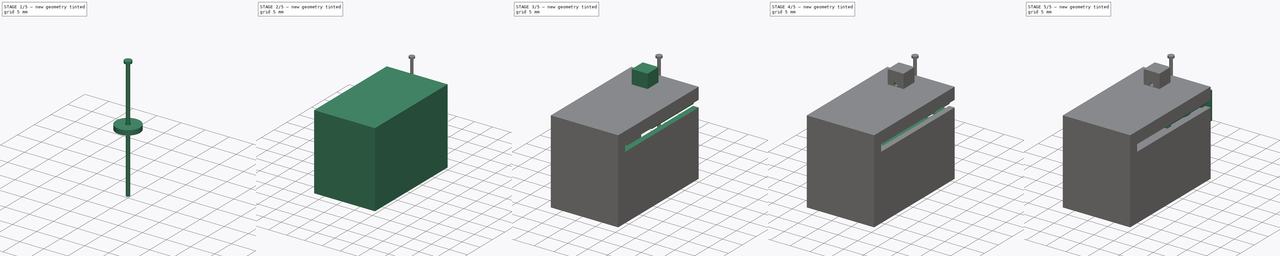
[diagram: build sequence overview — one tinted view per stage of 5, left to right]
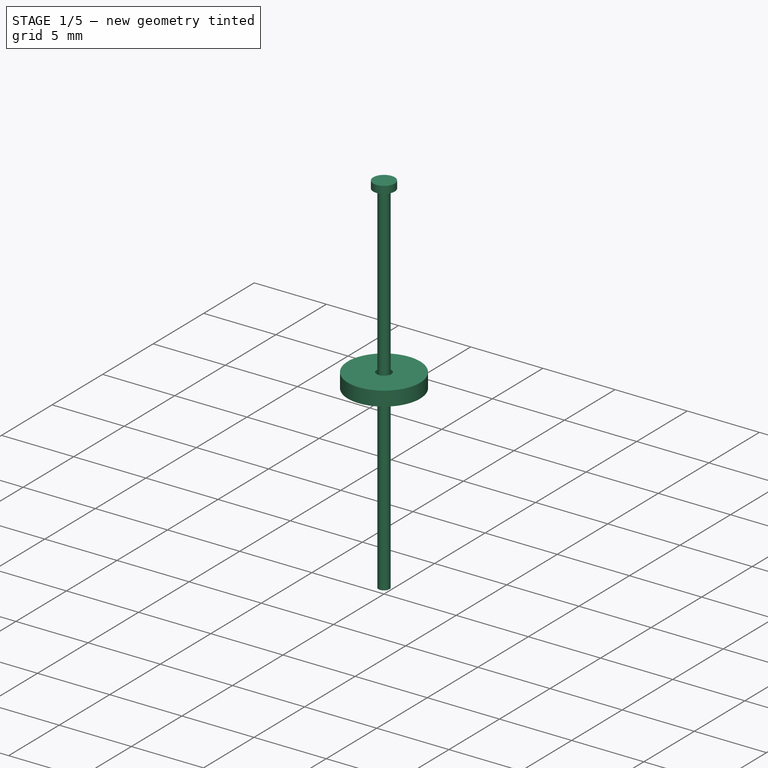
[diagram: stage 1 of 5 — iso view after this stage's code; geometry added in this stage tinted green]
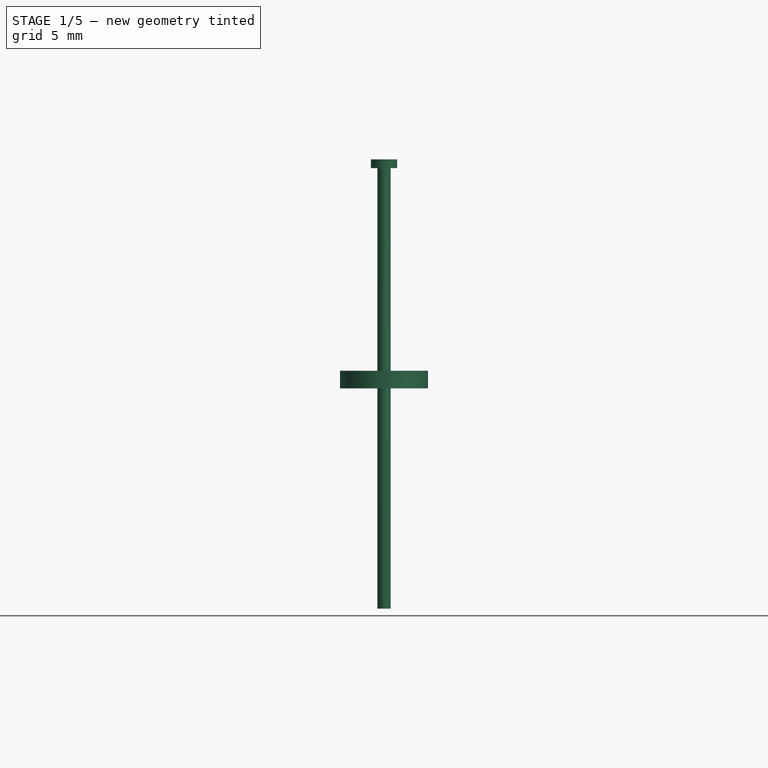
[diagram: stage 1 of 5 — front view after this stage's code; geometry added in this stage tinted green]
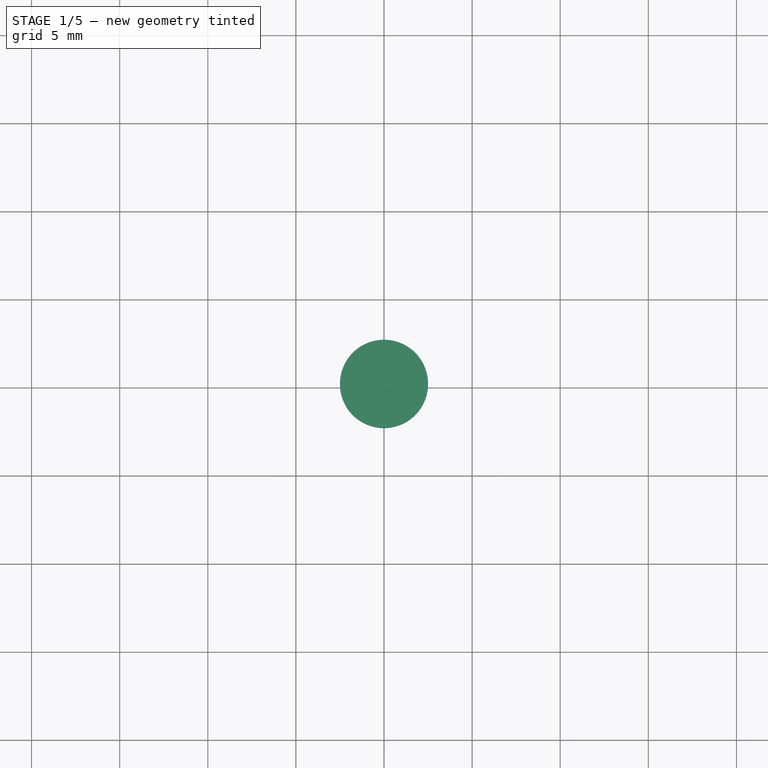
[diagram: stage 1 of 5 — top view after this stage's code; geometry added in this stage tinted green]
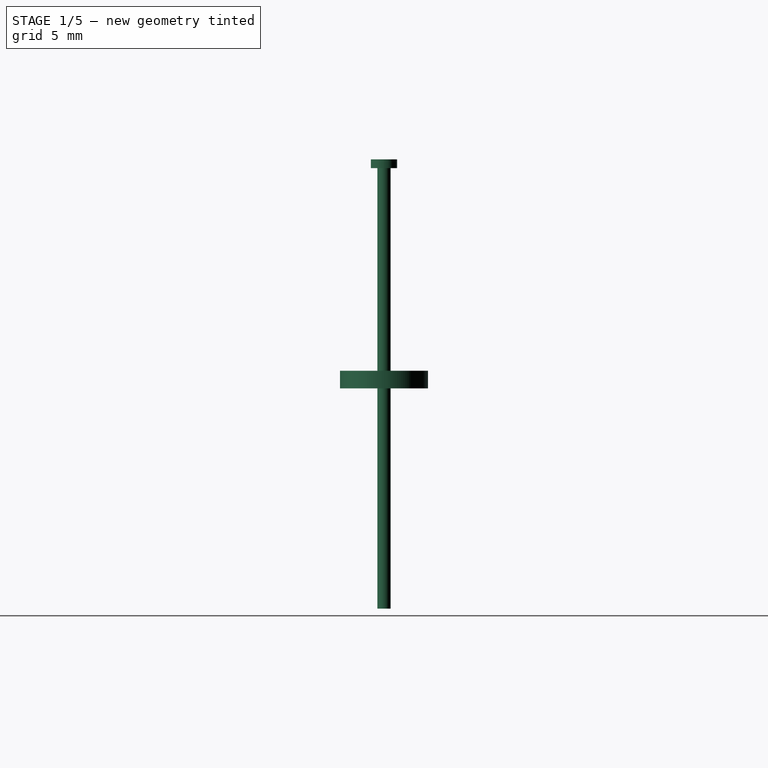
[diagram: stage 1 of 5 — right view after this stage's code; geometry added in this stage tinted green]
FCSTD DOCUMENT  (FreeCAD 0.19R24276 (Git))
Label: Actuator_Model_A_rev(02)
License: All rights reserved
LicenseURL: http://en.wikipedia.org/wiki/All_rights_reserved
objects: Sketcher::SketchObject×17, PartDesign::Pad×12, PartDesign::Body×7, PartDesign::Pocket×4, App::Part×3, Image::ImagePlane×1
note: 56 computed .brp shape members not serialized (recipe doc carries the construction recipe); baked Part::Feature solids carry a one-line shape summary decoded from their .brp

FEATURE [PartDesign::Body] Body003  label="Segment"
  Group = -> [Sketch005,Pad005,Sketch006,Pad006,Sketch007,Pocket]
  Origin = -> Origin007
  Placement = pos=(0,9,-2) rot=(1,0,0;1.5708rad)
  Tip = -> Pocket
FEATURE [Sketcher::SketchObject] Sketch008
  FullyConstrained = true
  MapMode = 5
  Support = -> [XY_Plane008]
  sketch-geometry (1):
    g0: Circle CenterX=0 CenterY=0 CenterZ=0 NormalX=0 NormalY=0 NormalZ=1 AngleXU=0 Radius=0.375
  constraints (2):
    c: Coincident(g0,g-1)
    c: Radius(g0) = 0.375
FEATURE [PartDesign::Pad] Pad007
  Direction = (1,1,1)
  Length = 25
  Length2 = 100
  Midplane = true
  Profile = -> Sketch008
  Type = 0
FEATURE [Sketcher::SketchObject] Sketch015
  FullyConstrained = true
  MapMode = 5
  Support = -> [XY_Plane013]
  sketch-geometry (2):
    g0: Circle CenterX=0 CenterY=0 CenterZ=0 NormalX=0 NormalY=0 NormalZ=1 AngleXU=0 Radius=2.5
    g1: Circle CenterX=0 CenterY=0 CenterZ=0 NormalX=0 NormalY=0 NormalZ=1 AngleXU=0 Radius=0.5
  constraints (4):
    c: Coincident(g0,g-1)
    c: Radius(g0) = 2.5
    c: Coincident(g1,g0)
    c: Radius(g1) = 0.5
FEATURE [PartDesign::Pad] Pad010
  Direction = (1,1,1)
  Length = 1
  Length2 = 100
  Profile = -> Sketch015
  Type = 0
FEATURE [PartDesign::Body] Body007  label="Pin Guide"
  Group = -> [Sketch015,Pad010,Sketch017,Pad011]
  Origin = -> Origin013
  Placement = pos=(0,0,-3) rot=(0,0,1;0rad)
  Tip = -> Pad011
FEATURE [Sketcher::SketchObject] Sketch018
  FullyConstrained = false
  MapMode = 5
  Placement = pos=(0,0,12.5) rot=(0,0,1;0rad)
  Support = -> [Pad007]
  sketch-geometry (1):
    g0: Circle CenterX=0 CenterY=0 CenterZ=0 NormalX=0 NormalY=0 NormalZ=1 AngleXU=0 Radius=0.742682
  constraints (1):
    c: Coincident(g0,g-1)
FEATURE [PartDesign::Pad] Pad012
  BaseFeature = -> Pad007
  Direction = (1,1,1)
  Length = 0.5
  Length2 = 100
  Profile = -> Sketch018
  Type = 0
FEATURE [PartDesign::Body] Body004  label="Pin"
  Group = -> [Sketch008,Pad007,Sketch018,Pad012]
  Origin = -> Origin008
  Placement = pos=(0,0,-2) rot=(0,0,1;0rad)
  Tip = -> Pad012
FEATURE [App::Part] Part001  label="Segment Assy"
  Group = -> [Body003,Body004,Body007]
  Origin = -> Origin006
FEATURE [Sketcher::SketchObject] Sketch011  label="Actuator_DXF"
  FullyConstrained = false
  sketch-geometry (36):
    g0: ArcOfCircle CenterX=-1.255 CenterY=9.45 CenterZ=0 NormalX=0 NormalY=0 NormalZ=1 AngleXU=0 Radius=3.25 StartAngle=3.80447 EndAngle=4.17988
    g1: ArcOfCircle CenterX=-1.255 CenterY=9.45 CenterZ=0 NormalX=0 NormalY=0 NormalZ=1 AngleXU=0 Radius=3 StartAngle=2.15316 EndAngle=2.41186
    g2: LineSegment StartX=-2.905 StartY=14.05 StartZ=0 EndX=-2.905 EndY=11.9555 EndZ=0
    g3: LineSegment StartX=-3.49107 StartY=11.45 StartZ=0 EndX=-5.06157 EndY=11.45 EndZ=0
    g4: LineSegment StartX=0.395 StartY=14.05 StartZ=0 EndX=0.395 EndY=12.25 EndZ=0
    g5: ArcOfCircle CenterX=-1.255 CenterY=9.45 CenterZ=0 NormalX=0 NormalY=0 NormalZ=1 AngleXU=0 Radius=4.3 StartAngle=2.65783 EndAngle=3.62536
    g6: LineSegment StartX=-5.06157 StartY=7.45 StartZ=0 EndX=-3.81674 EndY=7.45 EndZ=0
    g7: LineSegment StartX=-2.905 StartY=1.32754 StartZ=0 EndX=-3.405 EndY=0.716888 EndZ=0
    g8: LineSegment StartX=-3.405 StartY=0.716888 StartZ=0 EndX=-3.405 EndY=-11.161 EndZ=0
    g9: LineSegment StartX=-3.405 StartY=-11.161 StartZ=0 EndX=0.895 EndY=-11.161 EndZ=0
    g10: LineSegment StartX=0.895 StartY=-11.161 StartZ=0 EndX=0.895 EndY=0.716888 EndZ=0
    g11: LineSegment StartX=0.895 StartY=0.716888 StartZ=0 EndX=0.395 EndY=1.32754 EndZ=0
    g12: LineSegment StartX=0.395 StartY=1.32754 StartZ=0 EndX=0.395 EndY=6.94451 EndZ=0
    g13: LineSegment StartX=0.981068 StartY=7.45 StartZ=0 EndX=2.55157 EndY=7.45 EndZ=0
    g14: LineSegment StartX=0.395 StartY=14.05 StartZ=0 EndX=4.295 EndY=14.05 EndZ=0
    g15: LineSegment StartX=4.295 StartY=14.05 StartZ=0 EndX=4.295 EndY=-13.8452 EndZ=0
    g16: LineSegment StartX=4.295 StartY=-13.8452 StartZ=0 EndX=-6.805 EndY=-13.8452 EndZ=0
    g17: LineSegment StartX=-6.805 StartY=-13.8452 StartZ=0 EndX=-6.805 EndY=14.05 EndZ=0
    g18: LineSegment StartX=-6.805 StartY=14.05 StartZ=0 EndX=-2.905 EndY=14.05 EndZ=0
    g19: ArcOfCircle CenterX=-1.255 CenterY=9.45 CenterZ=0 NormalX=0 NormalY=0 NormalZ=1 AngleXU=0 Radius=3.25 StartAngle=0.662874 EndAngle=1.03829
    g20: ArcOfCircle CenterX=-1.255 CenterY=9.45 CenterZ=0 NormalX=0 NormalY=0 NormalZ=1 AngleXU=0 Radius=3 StartAngle=5.29475 EndAngle=5.55346
    g21: LineSegment StartX=1.30674 StartY=11.45 StartZ=0 EndX=2.55157 EndY=11.45 EndZ=0
    g22: ArcOfCircle CenterX=-1.255 CenterY=9.45 CenterZ=0 NormalX=0 NormalY=0 NormalZ=1 AngleXU=0 Radius=4.3 StartAngle=5.79942 EndAngle=6.76695
    g23: LineSegment StartX=-2.905 StartY=6.65 StartZ=0 EndX=-2.905 EndY=1.32754 EndZ=0
    g24: Circle CenterX=-1.255 CenterY=9.45 CenterZ=0 NormalX=0 NormalY=0 NormalZ=1 AngleXU=0 Radius=1.1
    g25: Circle CenterX=-1.255 CenterY=9.45 CenterZ=0 NormalX=0 NormalY=0 NormalZ=1 AngleXU=0 Radius=2.6
    g26: LineSegment StartX=4.75434 StartY=4.3 StartZ=0 EndX=6.75434 EndY=4.3 EndZ=0
    g27: LineSegment StartX=6.75434 StartY=4.3 StartZ=0 EndX=6.75434 EndY=-10 EndZ=0
    g28: LineSegment StartX=6.75434 StartY=-10 StartZ=0 EndX=4.75434 EndY=-10 EndZ=0
    g29: LineSegment StartX=4.75434 StartY=-10 StartZ=0 EndX=4.75434 EndY=4.3 EndZ=0
    g30: LineSegment StartX=0 StartY=4.3 StartZ=0 EndX=-2 EndY=4.3 EndZ=0
    g31: LineSegment StartX=-2 StartY=4.3 StartZ=0 EndX=-2 EndY=-10 EndZ=0
    g32: LineSegment StartX=-2 StartY=-10 StartZ=0 EndX=0 EndY=-10 EndZ=0
    g33: LineSegment StartX=0 StartY=-10 StartZ=0 EndX=0 EndY=4.3 EndZ=0
    g34: LineSegment StartX=-1.255 StartY=9.45 StartZ=0 EndX=-5.03131 EndY=9.45 EndZ=0
    g35: LineSegment StartX=-1.255 StartY=9.45 StartZ=0 EndX=-1.255 EndY=5.79474 EndZ=0
  constraints (78):
    c: DistanceX(g0) = -1.255
    c: DistanceY(g0) = 9.45
    c: Radius(g0) = 3.25
    c: Coincident(g1,g0)
    c: Radius(g1) = 3
    c: Vertical(g2)
    c: Horizontal(g3)
    c: Vertical(g4)
    c: Coincident(g5,g0)
    c: Radius(g5) = 4.3
    c: Horizontal(g6)
    c: Coincident(g23,g7)
    c: Coincident(g7,g8)
    c: Vertical(g8)
    c: Coincident(g8,g9)
    c: Horizontal(g9)
    c: Coincident(g9,g10)
    c: Vertical(g10)
    c: Coincident(g10,g11)
    c: Coincident(g11,g12)
    c: Vertical(g12)
    c: Horizontal(g13)
    c: Coincident(g4,g14)
    c: Horizontal(g14)
    c: Coincident(g14,g15)
    c: Vertical(g15)
    c: Coincident(g15,g16)
    c: Horizontal(g16)
    c: Coincident(g16,g17)
    c: Vertical(g17)
    c: Coincident(g17,g18)
    c: Coincident(g18,g2)
    c: Horizontal(g18)
    c: Equal(g14,g18)
    c: DistanceX(g14,g14) = 3.9
    c: DistanceX(g9,g9) = 4.3
    c: Coincident(g3,g5)
    c: Equal(g0,g19)
    c: Coincident(g0,g19)
    c: Coincident(g21,g19)
    c: Coincident(g4,g19)
    c: Coincident(g2,g1)
    c: Coincident(g3,g1)
    c: Coincident(g6,g0)
    c: Coincident(g5,g6)
    c: Coincident(g13,g20)
    c: Coincident(g12,g20)
    c: Coincident(g23,g0)
    c: Coincident(g13,g22)
    c: Coincident(g22,g21)
    c: Coincident(g24,g0)
    c: Coincident(g25,g0)
    c: Radius(g25) = 2.6
    c: Radius(g24) = 1.1
    c: Coincident(g26,g27)
    c: Coincident(g27,g28)
    c: Coincident(g28,g29)
    c: Coincident(g29,g26)
    c: Horizontal(g26)
    c: Horizontal(g28)
    c: Vertical(g27)
    c: Vertical(g29)
    c: Coincident(g30,g31)
    c: Coincident(g31,g32)
    c: Coincident(g32,g33)
    c: Coincident(g33,g30)
    c: Horizontal(g30)
    c: Horizontal(g32)
    c: Vertical(g31)
    c: Vertical(g33)
    c: Equal(g26,g30)
    c: Equal(g27,g33)
    c: DistanceY(g-1,g26) = 4.3
    c: DistanceY(g-1,g30) = 4.3
    c: DistanceY(g27,g27) = 14.3
    c: DistanceX(g28,g28) = 2
    c: Horizontal(g34)
    c: Vertical(g35)
FEATURE [App::Part] Part  label="Clock Parts"
  Group = -> [Body,Body001,Body002,ImagePlane,Sketch011]
  Origin = -> Origin
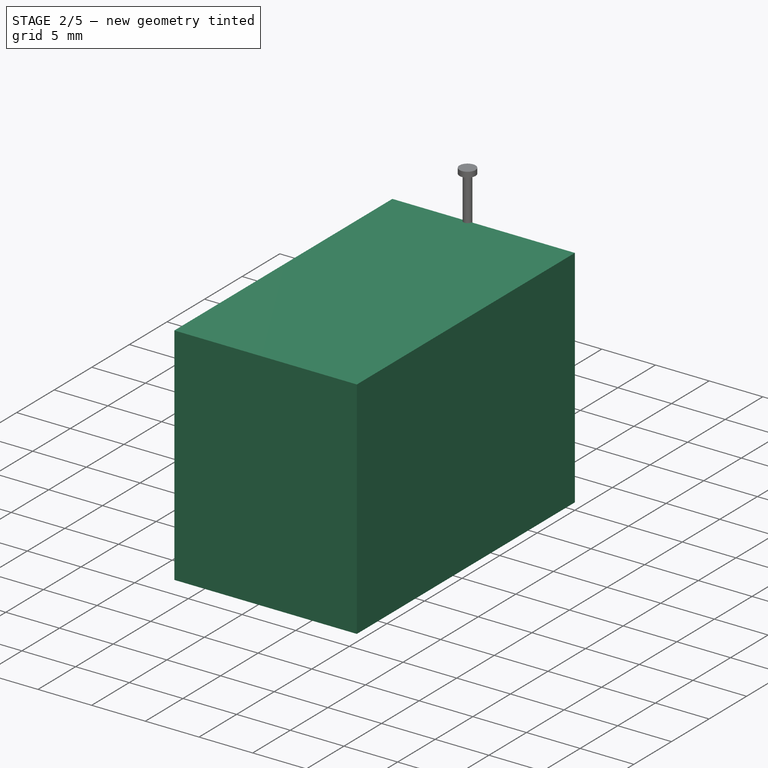
[diagram: stage 2 of 5 — iso view after this stage's code; geometry added in this stage tinted green]
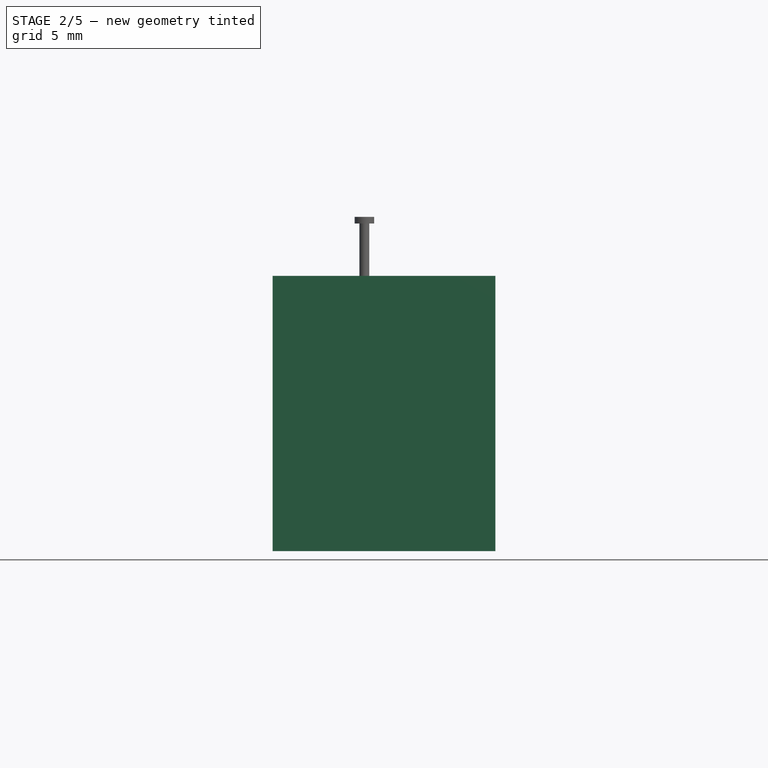
[diagram: stage 2 of 5 — front view after this stage's code; geometry added in this stage tinted green]
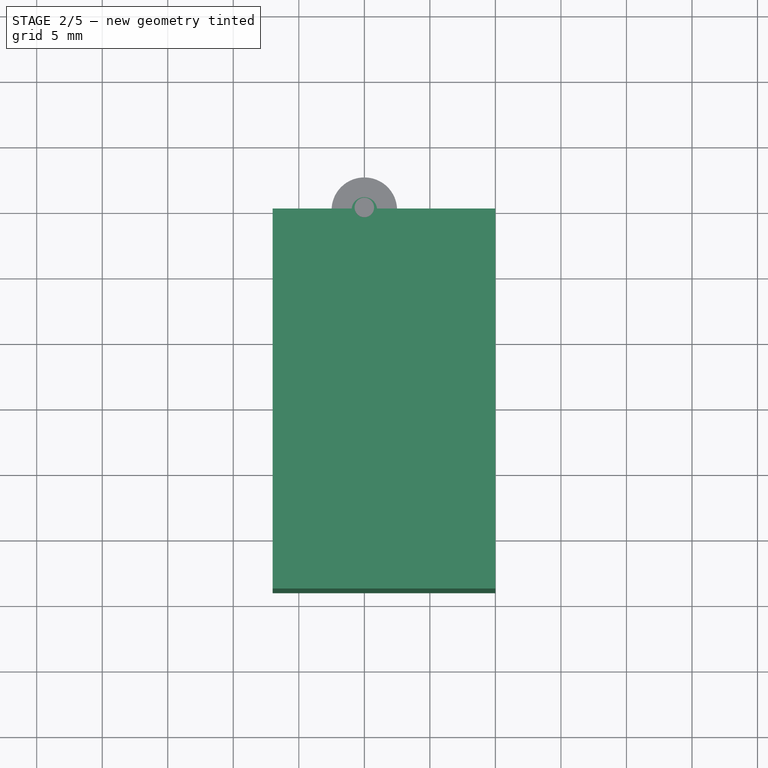
[diagram: stage 2 of 5 — top view after this stage's code; geometry added in this stage tinted green]
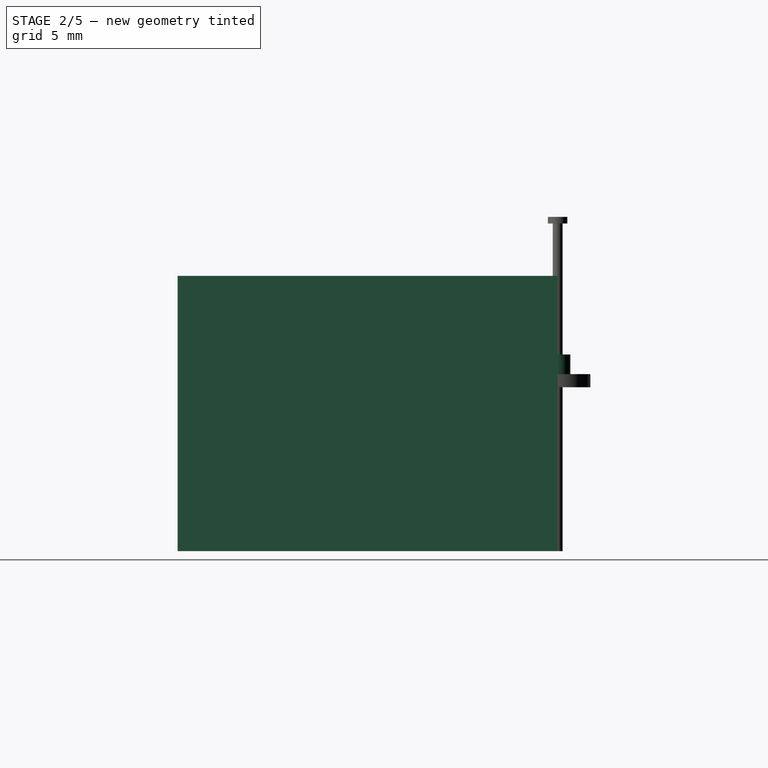
[diagram: stage 2 of 5 — right view after this stage's code; geometry added in this stage tinted green]
FEATURE [Sketcher::SketchObject] Sketch012
  FullyConstrained = true
  MapMode = 5
  Placement = pos=(0,0,0) rot=(1,0,0;1.5708rad)
  Support = -> [XZ_Plane012]
  sketch-geometry (4):
    g0: LineSegment StartX=-7 StartY=8.5 StartZ=0 EndX=10 EndY=8.5 EndZ=0
    g1: LineSegment StartX=10 StartY=8.5 StartZ=0 EndX=10 EndY=-12.5 EndZ=0
    g2: LineSegment StartX=10 StartY=-12.5 StartZ=0 EndX=-7 EndY=-12.5 EndZ=0
    g3: LineSegment StartX=-7 StartY=-12.5 StartZ=0 EndX=-7 EndY=8.5 EndZ=0
  constraints (12):
    c: Coincident(g0,g1)
    c: Coincident(g1,g2)
    c: Coincident(g2,g3)
    c: Coincident(g3,g0)
    c: Horizontal(g0)
    c: Horizontal(g2)
    c: Vertical(g1)
    c: Vertical(g3)
    c: DistanceX(g0) = -7
    c: DistanceY(g0) = 8.5
    c: DistanceX(g1) = 10
    c: DistanceY(g1) = -12.5
FEATURE [PartDesign::Pad] Pad009
  Direction = (1,1,1)
  Length = 29
  Length2 = 100
  Placement = pos=(0,0,0) rot=(1,0,0;1.5708rad)
  Profile = -> Sketch012
  Type = 0
FEATURE [Sketcher::SketchObject] Sketch013
  ExternalGeometry = -> [Pad009]
  FullyConstrained = true
  MapMode = 5
  Placement = pos=(0,0,0) rot=(-1,0,0;1.5708rad)
  Support = -> [Pad009]
  sketch-geometry (4):
    g0: LineSegment StartX=-4.5 StartY=10.5 StartZ=0 EndX=8.6 EndY=10.5 EndZ=0
    g1: LineSegment StartX=8.6 StartY=10.5 StartZ=0 EndX=8.6 EndY=-6.5 EndZ=0
    g2: LineSegment StartX=8.6 StartY=-6.5 StartZ=0 EndX=-4.5 EndY=-6.5 EndZ=0
    g3: LineSegment StartX=-4.5 StartY=-6.5 StartZ=0 EndX=-4.5 EndY=10.5 EndZ=0
  constraints (12):
    c: Coincident(g0,g1)
    c: Coincident(g1,g2)
    c: Coincident(g2,g3)
    c: Coincident(g3,g0)
    c: Horizontal(g0)
    c: Horizontal(g2)
    c: Vertical(g1)
    c: Vertical(g3)
    c: DistanceX(g-3,g0) = 2.5
    c: DistanceY(g-3,g0) = -2
    c: DistanceX(g-4,g1) = -1.4
    c: DistanceY(g-4,g1) = 2
FEATURE [PartDesign::Pocket] Pocket001
  BaseFeature = -> Pad009
  Length = 23.7
  Length2 = 100
  Placement = pos=(0,0,0) rot=(1,0,0;1.5708rad)
  Profile = -> Sketch013
  Type = 0
FEATURE [PartDesign::Body] Body006
  Group = -> [Sketch012,Pad009,Sketch013,Pocket001,Sketch014,Pocket002,Sketch016,Pocket003]
  Origin = -> Origin012
  Tip = -> Pocket003
FEATURE [App::Part] Part003  label="Case"
  Group = -> [Body006]
  Origin = -> Origin011
  Placement = pos=(0,3,0) rot=(0,0,1;0rad)
FEATURE [Sketcher::SketchObject] Sketch017
  FullyConstrained = true
  MapMode = 5
  Placement = pos=(0,0,1) rot=(0,0,1;0rad)
  Support = -> [Pad010]
  sketch-geometry (2):
    g0: Circle CenterX=0 CenterY=0 CenterZ=0 NormalX=0 NormalY=0 NormalZ=1 AngleXU=0 Radius=0.97
    g1: Circle CenterX=0 CenterY=0 CenterZ=0 NormalX=0 NormalY=0 NormalZ=1 AngleXU=0 Radius=0.55
  constraints (4):
    c: Coincident(g0,g-1)
    c: Radius(g0) = 0.97
    c: Coincident(g1,g0)
    c: Radius(g1) = 0.55
FEATURE [PartDesign::Pad] Pad011
  BaseFeature = -> Pad010
  Direction = (1,1,1)
  Length = 1.5
  Length2 = 100
  Profile = -> Sketch017
  Type = 0
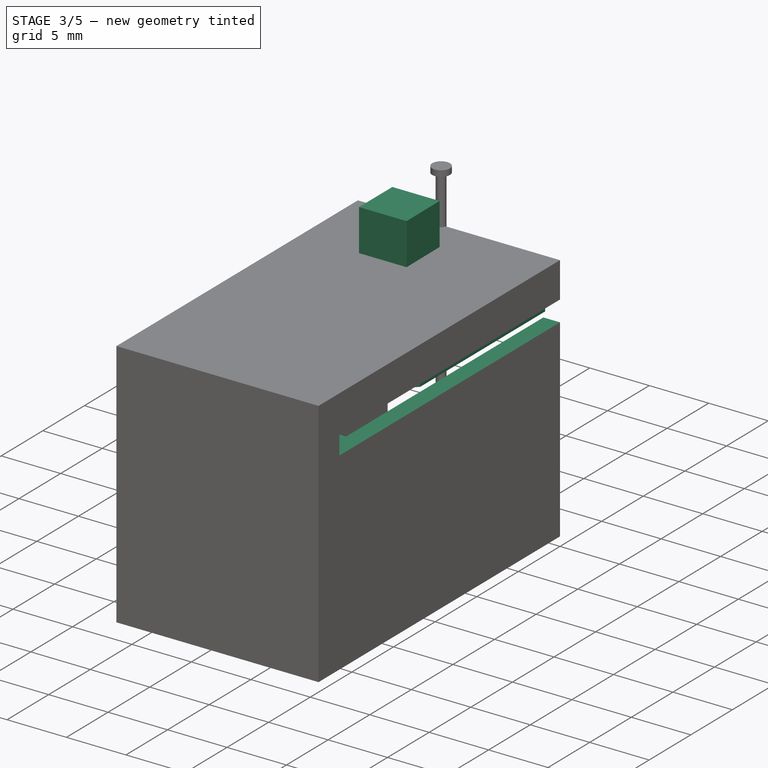
[diagram: stage 3 of 5 — iso view after this stage's code; geometry added in this stage tinted green]
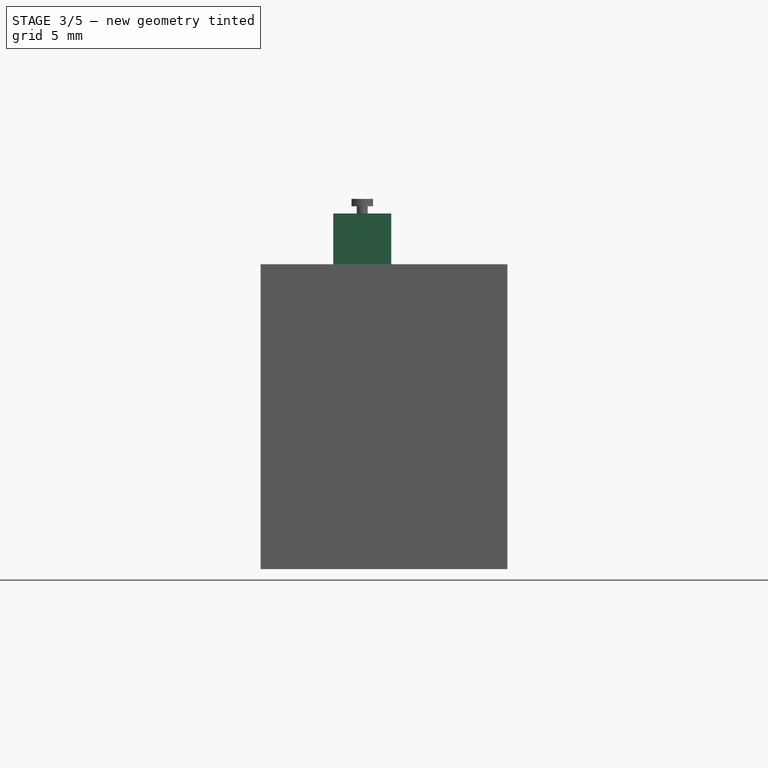
[diagram: stage 3 of 5 — front view after this stage's code; geometry added in this stage tinted green]
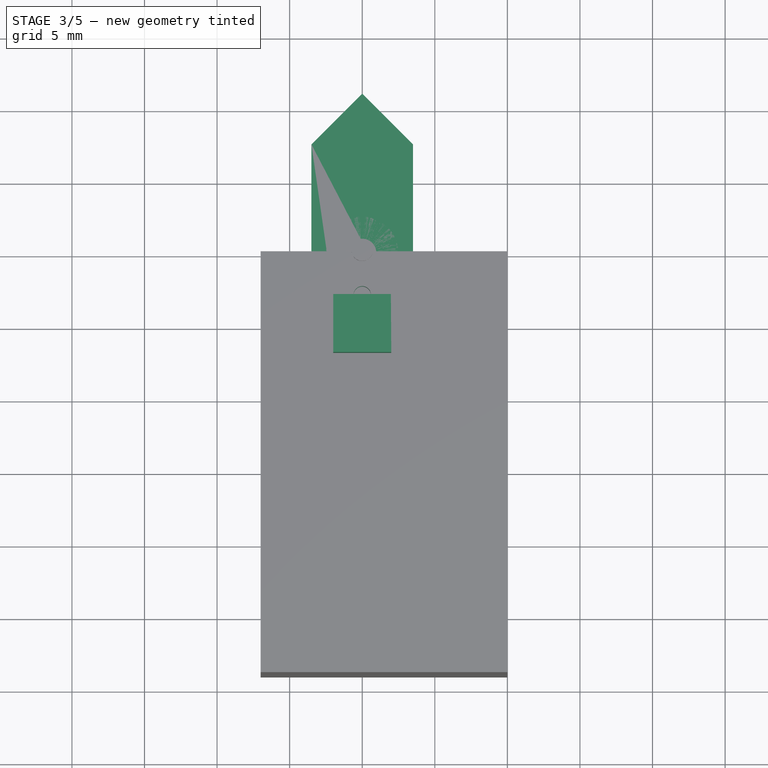
[diagram: stage 3 of 5 — top view after this stage's code; geometry added in this stage tinted green]
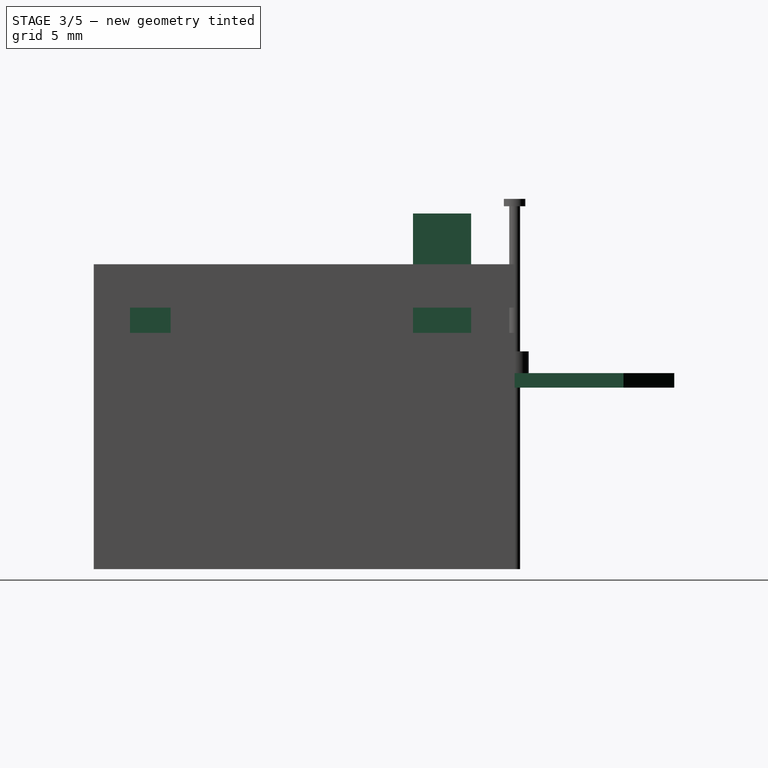
[diagram: stage 3 of 5 — right view after this stage's code; geometry added in this stage tinted green]
FEATURE [PartDesign::Body] Body002  label="Magnet"
  Group = -> [Sketch004,Pad004]
  Origin = -> Origin005
  Tip = -> Pad004
FEATURE [Sketcher::SketchObject] Sketch005
  FullyConstrained = true
  MapMode = 5
  Support = -> [XY_Plane007]
  sketch-geometry (6):
    g0: LineSegment StartX=4e-16 StartY=-11 StartZ=0 EndX=3.5 EndY=-7.5 EndZ=0
    g1: LineSegment StartX=3.5 StartY=-7.5 StartZ=0 EndX=3.5 EndY=7.5 EndZ=0
    g2: LineSegment StartX=3.5 StartY=7.5 StartZ=0 EndX=-4e-16 EndY=11 EndZ=0
    g3: LineSegment StartX=-4e-16 StartY=11 StartZ=0 EndX=-3.5 EndY=7.5 EndZ=0
    g4: LineSegment StartX=-3.5 StartY=7.5 StartZ=0 EndX=-3.5 EndY=-7.5 EndZ=0
    g5: LineSegment StartX=-3.5 StartY=-7.5 StartZ=0 EndX=4e-16 EndY=-11 EndZ=0
  constraints (15):
    c: Coincident(g0,g1)
    c: Coincident(g1,g2)
    c: Coincident(g2,g3)
    c: Coincident(g3,g4)
    c: Coincident(g4,g5)
    c: Coincident(g5,g0)
    c: PointOnObject(g5,g-2)
    c: Vertical(g4)
    c: Symmetric(g0,g2,g-1)
    c: Equal(g1,g4)
    c: Symmetric(g1,g3,g-2)
    c: Symmetric(g0,g1,g-1)
    c: DistanceX(g4,g0) = 7
    c: DistanceY(g0,g2) = 22
    c: DistanceY(g4,g4) = 15
FEATURE [PartDesign::Pad] Pad005
  Direction = (1,1,1)
  Length = 1
  Length2 = 100
  Profile = -> Sketch005
  Type = 0
FEATURE [Sketcher::SketchObject] Sketch006
  FullyConstrained = false
  MapMode = 5
  Placement = pos=(0,0,1) rot=(0,0,1;0rad)
  Support = -> [Pad005]
  sketch-geometry (4):
    g0: LineSegment StartX=-2 StartY=-3 StartZ=0 EndX=1.97397 EndY=-3 EndZ=0
    g1: LineSegment StartX=1.97397 StartY=-3 StartZ=0 EndX=2 EndY=-7 EndZ=0
    g2: LineSegment StartX=2 StartY=-7 StartZ=0 EndX=-2 EndY=-7 EndZ=0
    g3: LineSegment StartX=-2 StartY=-7 StartZ=0 EndX=-2 EndY=-3 EndZ=0
  constraints (10):
    c: Coincident(g0,g1)
    c: Coincident(g1,g2)
    c: Coincident(g2,g3)
    c: Coincident(g3,g0)
    c: Horizontal(g0)
    c: Vertical(g3)
    c: Symmetric(g2,g1,g-2)
    c: DistanceY(g1,g1) = 4
    c: DistanceX(g2,g2) = 4
    c: DistanceY(g0,g-1) = 3
FEATURE [PartDesign::Pad] Pad006
  BaseFeature = -> Pad005
  Direction = (1,1,1)
  Length = 11
  Length2 = 100
  Profile = -> Sketch006
  Type = 0
FEATURE [Sketcher::SketchObject] Sketch014
  FullyConstrained = false
  MapMode = 5
  Placement = pos=(0,0,0) rot=(-1,0,0;1.5708rad)
  Support = -> [Pocket001]
  sketch-geometry (8):
    g0: LineSegment StartX=-5.75 StartY=0.6 StartZ=0 EndX=5.75 EndY=0.6 EndZ=0
    g1: LineSegment StartX=5.75 StartY=0.6 StartZ=0 EndX=5.75 EndY=-0.6 EndZ=0
    g2: LineSegment StartX=5.75 StartY=-0.6 StartZ=0 EndX=-5.75 EndY=-0.6 EndZ=0
    g3: LineSegment StartX=-5.75 StartY=-0.6 StartZ=0 EndX=-5.75 EndY=0.6 EndZ=0
    g4: LineSegment StartX=7.58734 StartY=-3.77195 StartZ=0 EndX=10.7926 EndY=-3.77195 EndZ=0
    g5: LineSegment StartX=10.7926 StartY=-3.77195 StartZ=0 EndX=10.7926 EndY=-5.50814 EndZ=0
    g6: LineSegment StartX=10.7926 StartY=-5.50814 StartZ=0 EndX=7.58734 EndY=-5.50814 EndZ=0
    g7: LineSegment StartX=7.58734 StartY=-5.50814 StartZ=0 EndX=7.58734 EndY=-3.77195 EndZ=0
  constraints (18):
    c: Coincident(g0,g1)
    c: Coincident(g1,g2)
    c: Coincident(g2,g3)
    c: Coincident(g3,g0)
    c: Horizontal(g2)
    c: Vertical(g3)
    c: Symmetric(g0,g0,g-2)
    c: Symmetric(g1,g0,g-1)
    c: DistanceX(g0,g0) = 11.5
    c: DistanceY(g3,g3) = 1.2
    c: Coincident(g4,g5)
    c: Coincident(g5,g6)
    c: Coincident(g6,g7)
    c: Coincident(g7,g4)
    c: Horizontal(g4)
    c: Horizontal(g6)
    c: Vertical(g5)
    c: Vertical(g7)
FEATURE [PartDesign::Pocket] Pocket002
  BaseFeature = -> Pocket001
  Length = 26.5
  Length2 = 100
  Placement = pos=(0,0,0) rot=(1,0,0;1.5708rad)
  Profile = -> Sketch014
  Type = 0
FEATURE [Sketcher::SketchObject] Sketch016
  FullyConstrained = true
  MapMode = 5
  Placement = pos=(0,-8.3e-15,-12.5) rot=(1,0,0;3.14159rad)
  Support = -> [Pocket002]
  sketch-geometry (1):
    g0: Circle CenterX=0 CenterY=3 CenterZ=0 NormalX=0 NormalY=0 NormalZ=1 AngleXU=0 Radius=0.6
  constraints (3):
    c: PointOnObject(g0,g-2)
    c: Radius(g0) = 0.6
    c: DistanceY(g-1,g0) = 3
FEATURE [PartDesign::Pocket] Pocket003
  BaseFeature = -> Pocket002
  Length = 27
  Length2 = 100
  Placement = pos=(0,0,0) rot=(1,0,0;1.5708rad)
  Profile = -> Sketch016
  Type = 0
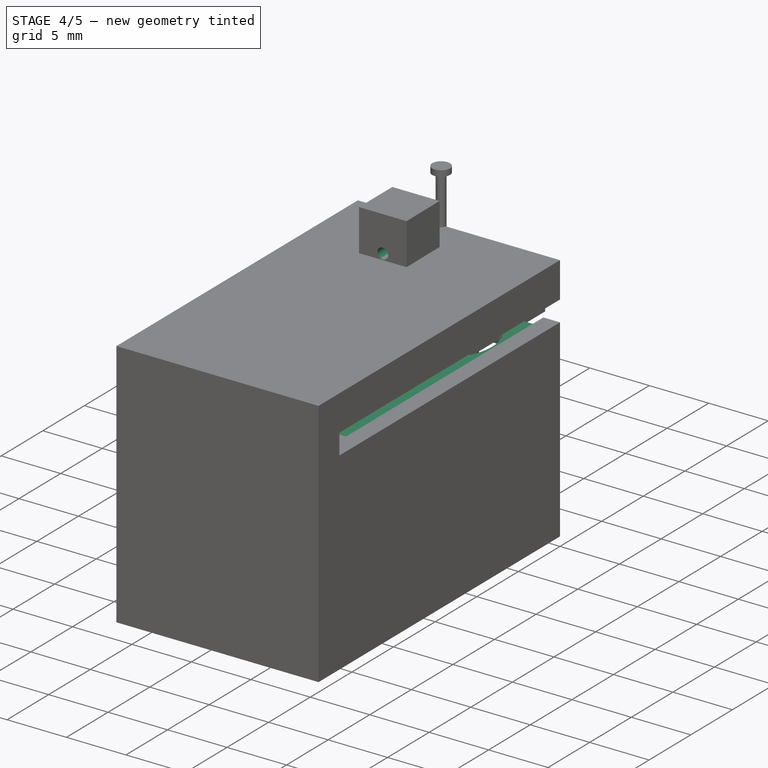
[diagram: stage 4 of 5 — iso view after this stage's code; geometry added in this stage tinted green]
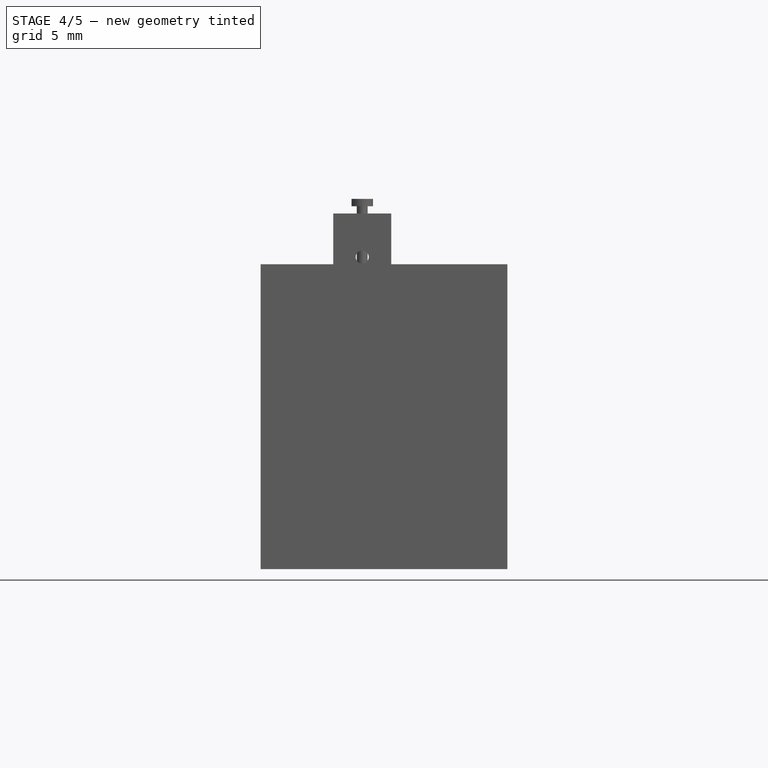
[diagram: stage 4 of 5 — front view after this stage's code; geometry added in this stage tinted green]
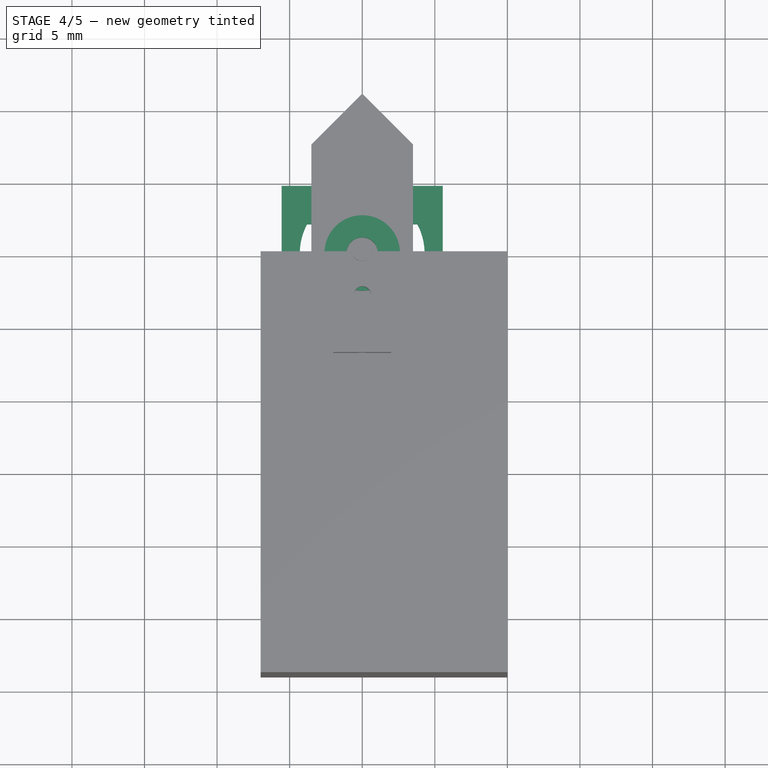
[diagram: stage 4 of 5 — top view after this stage's code; geometry added in this stage tinted green]
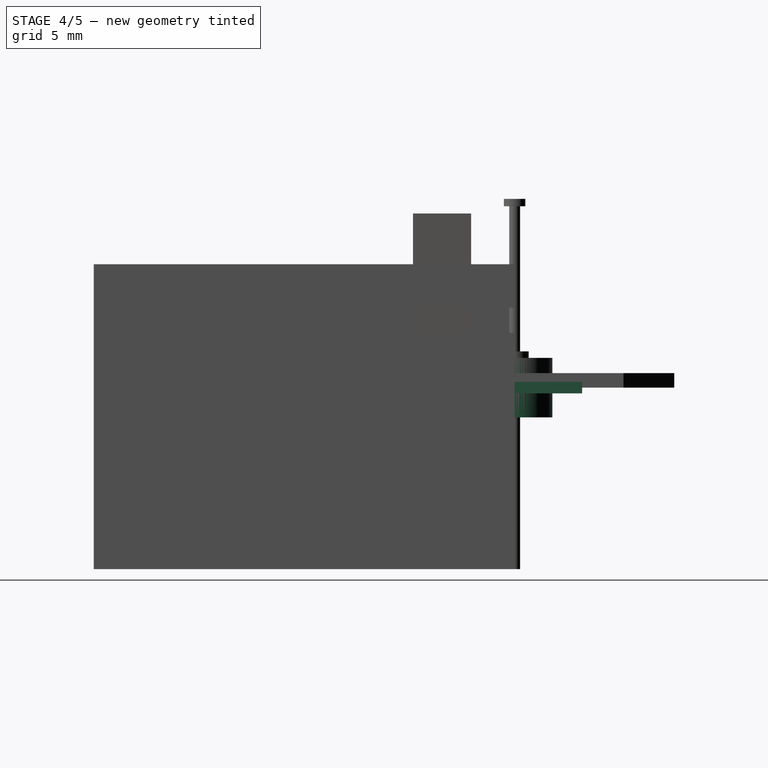
[diagram: stage 4 of 5 — right view after this stage's code; geometry added in this stage tinted green]
FEATURE [PartDesign::Body] Body001  label="Coil"
  Group = -> [Sketch001,Pad001,Sketch002,Pad002,Sketch003,Pad003]
  Origin = -> Origin003
  Placement = pos=(3.5,-13,0) rot=(0,0,1;0rad)
  Tip = -> Pad003
FEATURE [Sketcher::SketchObject] Sketch004
  FullyConstrained = true
  MapMode = 5
  Support = -> [XY_Plane005]
  sketch-geometry (2):
    g0: Circle CenterX=0 CenterY=0 CenterZ=0 NormalX=0 NormalY=0 NormalZ=1 AngleXU=0 Radius=1.075
    g1: Circle CenterX=0 CenterY=0 CenterZ=0 NormalX=0 NormalY=0 NormalZ=1 AngleXU=0 Radius=2.6
  constraints (4):
    c: Coincident(g0,g-1)
    c: Coincident(g1,g0)
    c: Radius(g1) = 2.6
    c: Radius(g0) = 1.075
FEATURE [PartDesign::Pad] Pad
  Direction = (1,1,1)
  Length = 0.8
  Length2 = 100
  Midplane = true
  Profile = -> Sketch
  Type = 0
FEATURE [PartDesign::Body] Body  label="Plate"
  Group = -> [Sketch,Pad]
  Origin = -> Origin001
  Tip = -> Pad
FEATURE [PartDesign::Pad] Pad004
  Direction = (1,1,1)
  Length = 4.1
  Length2 = 100
  Midplane = true
  Profile = -> Sketch004
  Type = 0
FEATURE [Sketcher::SketchObject] Sketch007
  FullyConstrained = true
  MapMode = 5
  Placement = pos=(0,-3,0) rot=(0,0.707107,0.707107;3.14159rad)
  Support = -> [Pad006]
  sketch-geometry (1):
    g0: Circle CenterX=0 CenterY=9 CenterZ=0 NormalX=0 NormalY=0 NormalZ=1 AngleXU=0 Radius=0.45
  constraints (3):
    c: PointOnObject(g0,g-2)
    c: DistanceY(g-1,g0) = 9
    c: Radius(g0) = 0.45
FEATURE [PartDesign::Pocket] Pocket
  BaseFeature = -> Pad006
  Length = 10
  Length2 = 100
  Profile = -> Sketch007
  Type = 0
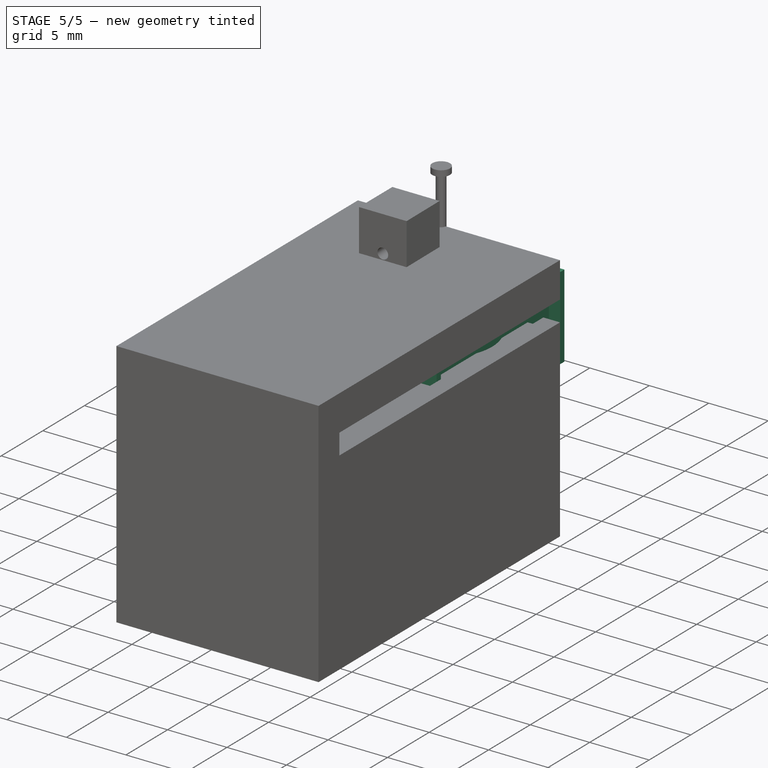
[diagram: stage 5 of 5 — iso view after this stage's code; geometry added in this stage tinted green]
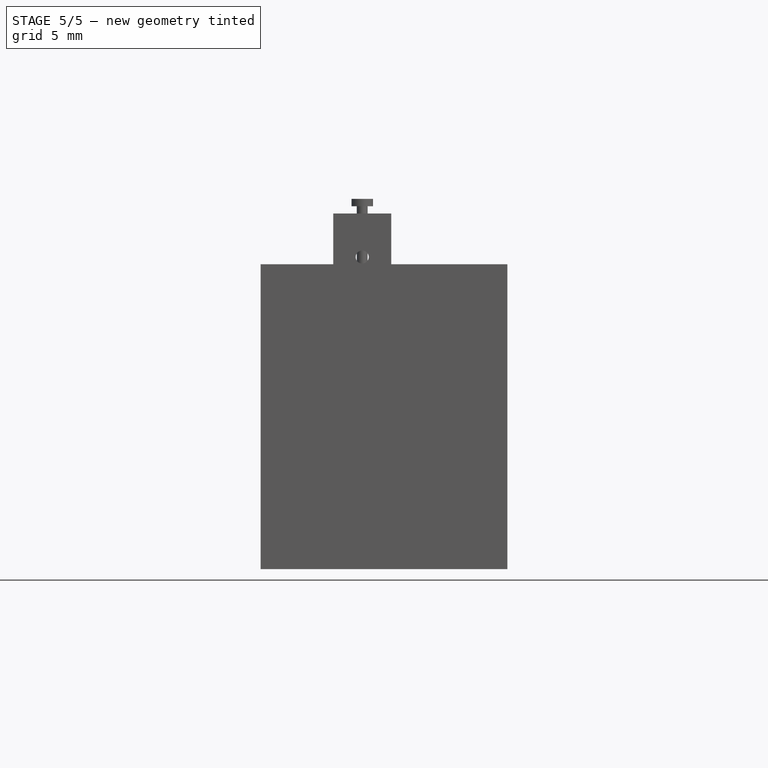
[diagram: stage 5 of 5 — front view after this stage's code; geometry added in this stage tinted green]
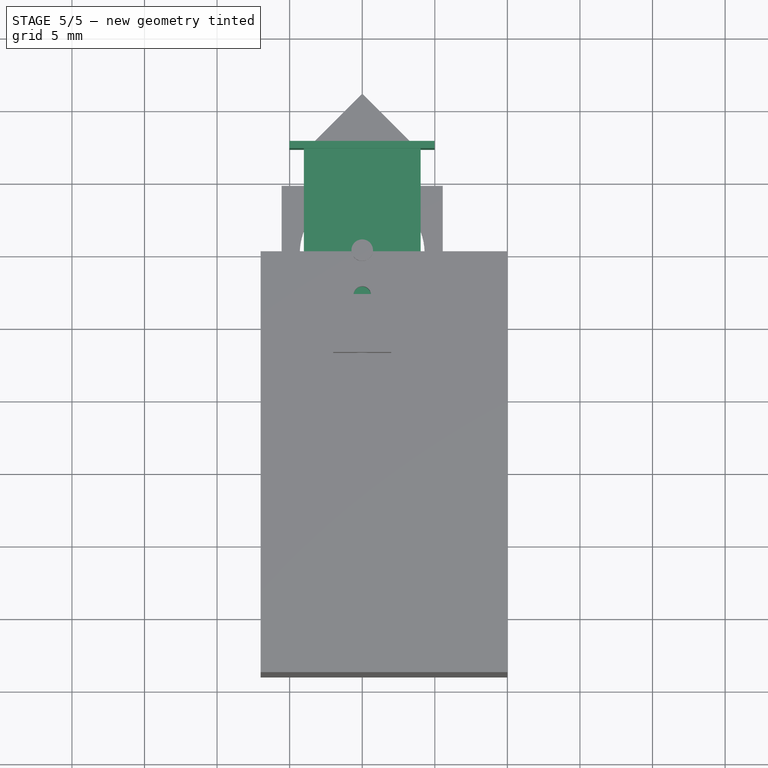
[diagram: stage 5 of 5 — top view after this stage's code; geometry added in this stage tinted green]
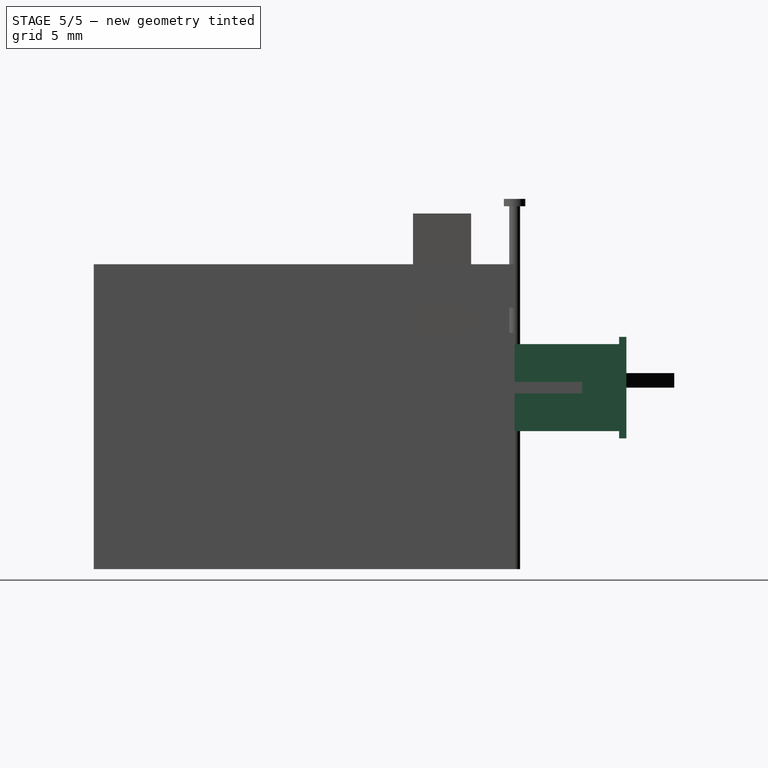
[diagram: stage 5 of 5 — right view after this stage's code; geometry added in this stage tinted green]
FEATURE [Sketcher::SketchObject] Sketch
  FullyConstrained = false
  MapMode = 5
  Support = -> [XY_Plane001]
  sketch-geometry (24):
    g0: LineSegment StartX=5.55 StartY=4.65 StartZ=0 EndX=5.55 EndY=-23.35 EndZ=0
    g1: LineSegment StartX=5.55 StartY=-23.35 StartZ=0 EndX=-5.55 EndY=-23.35 EndZ=0
    g2: LineSegment StartX=-5.55 StartY=-23.35 StartZ=0 EndX=-5.55 EndY=4.65 EndZ=0
    g3: LineSegment StartX=-5.55 StartY=4.65 StartZ=0 EndX=-1.65 EndY=4.65 EndZ=0
    g4: LineSegment StartX=-1.65 StartY=4.65 StartZ=0 EndX=-1.65 EndY=2.85788 EndZ=0
    g5: LineSegment StartX=-1.65 StartY=-7.8506 StartZ=0 EndX=-2.25 EndY=-8.61046 EndZ=0
    g6: LineSegment StartX=-2.25 StartY=-8.61046 StartZ=0 EndX=-2.25 EndY=-20.65 EndZ=0
    g7: LineSegment StartX=-2.25 StartY=-20.65 StartZ=0 EndX=2.25 EndY=-20.65 EndZ=0
    g8: LineSegment StartX=1.66888 StartY=-7.87451 StartZ=0 EndX=1.66888 EndY=-2.8469 EndZ=0
    g9: LineSegment StartX=1.65 StartY=4.65 StartZ=0 EndX=5.55 EndY=4.65 EndZ=0
    g10: ArcOfCircle CenterX=1.08e-13 CenterY=0 CenterZ=0 NormalX=0 NormalY=0 NormalZ=1 AngleXU=0 Radius=3.3 StartAngle=2.0944 EndAngle=2.49049
    g11: ArcOfCircle CenterX=1.08e-13 CenterY=0 CenterZ=0 NormalX=0 NormalY=0 NormalZ=1 AngleXU=0 Radius=4.3 StartAngle=2.65783 EndAngle=3.62536
    g12: LineSegment StartX=-3.80657 StartY=2 StartZ=0 EndX=-2.62488 EndY=2 EndZ=0
    g13: LineSegment StartX=-3.80657 StartY=-2 StartZ=0 EndX=-2.62488 EndY=-2 EndZ=0
    g14: LineSegment StartX=2.62488 StartY=2 StartZ=0 EndX=3.80488 EndY=2 EndZ=0
    g15: ArcOfCircle CenterX=1.08e-13 CenterY=0 CenterZ=0 NormalX=0 NormalY=0 NormalZ=1 AngleXU=0 Radius=3.3 StartAngle=3.79269 EndAngle=4.18879
    g16: ArcOfCircle CenterX=1.116e-13 CenterY=-4.3e-15 CenterZ=0 NormalX=0 NormalY=0 NormalZ=1 AngleXU=0 Radius=3.3 StartAngle=0.651099 EndAngle=1.0472
    g17: LineSegment StartX=2.62488 StartY=-2 StartZ=0 EndX=3.80657 EndY=-2 EndZ=0
    g18: ArcOfCircle CenterX=4.4e-15 CenterY=-0.00161011 CenterZ=0 NormalX=0 NormalY=0 NormalZ=1 AngleXU=0 Radius=4.29925 StartAngle=5.79975 EndAngle=6.76747
    g19: LineSegment StartX=1.65 StartY=2.85788 StartZ=0 EndX=1.65 EndY=4.65 EndZ=0
    g20: LineSegment StartX=-1.65 StartY=-2.85788 StartZ=0 EndX=-1.65 EndY=-7.8506 EndZ=0
    g21: ArcOfCircle CenterX=5.4e-14 CenterY=-1.08e-13 CenterZ=0 NormalX=0 NormalY=0 NormalZ=1 AngleXU=0 Radius=3.3 StartAngle=5.24261 EndAngle=5.63209
    g22: LineSegment StartX=2.25 StartY=-8.61046 StartZ=0 EndX=2.25 EndY=-20.65 EndZ=0
    g23: LineSegment StartX=1.66888 StartY=-7.87451 StartZ=0 EndX=2.25 EndY=-8.61046 EndZ=0
  constraints (57):
    c: Vertical(g0)
    c: Coincident(g0,g1)
    c: Horizontal(g1)
    c: Coincident(g1,g2)
    c: Vertical(g2)
    c: Coincident(g2,g3)
    c: Horizontal(g3)
    c: Coincident(g3,g4)
    c: Vertical(g4)
    c: Coincident(g20,g5)
    c: Coincident(g5,g6)
    c: Vertical(g6)
    c: Coincident(g6,g7)
    c: Coincident(g19,g9)
    c: Coincident(g9,g0)
    c: Coincident(g11,g10)
    c: Radius(g10) = 3.3
    c: Radius(g11) = 4.3
    c: Horizontal(g12)
    c: Horizontal(g13)
    c: PointOnObject(g14,g10)
    c: Coincident(g18,g14)
    c: Coincident(g11,g12)
    c: Equal(g10,g15)
    c: Coincident(g10,g12)
    c: Coincident(g10,g15)
    c: Equal(g15,g16)
    c: PointOnObject(g21,g13)
    c: Symmetric(g0,g2,g-2)
    c: Coincident(g23,g22)
    c: Vertical(g22)
    c: Coincident(g22,g7)
    c: Symmetric(g7,g6,g-2)
    c: DistanceX(g0) = 5.55
    c: DistanceY(g0) = -23.35
    c: Vertical(g19)
    c: Horizontal(g17)
    c: Horizontal(g14)
    c: Vertical(g8)
    c: Vertical(g20)
    c: Symmetric(g3,g9,g-2)
    c: DistanceX(g9) = 1.65
    c: DistanceY(g9) = 4.65
    c: DistanceX(g7) = 2.25
    c: DistanceY(g7) = -20.65
    c: Coincident(g10,g4)
    c: Coincident(g16,g19)
    c: Coincident(g14,g16)
    c: Coincident(g17,g18)
    c: Coincident(g11,g13)
    c: Coincident(g13,g15)
    c: Coincident(g17,g21)
    c: Coincident(g8,g21)
    c: Coincident(g15,g20)
    c: Symmetric(g14,g17,g-1)
    c: Symmetric(g10,g13,g-1)
    c: Coincident(g8,g23)
FEATURE [Image::ImagePlane] ImagePlane
  XSize = 16.5064
  YSize = 28.9621
FEATURE [Sketcher::SketchObject] Sketch001
  FullyConstrained = true
  MapMode = 5
  Support = -> [XY_Plane003]
  sketch-geometry (4):
    g0: LineSegment StartX=-4.02 StartY=7.2 StartZ=0 EndX=4.02 EndY=7.2 EndZ=0
    g1: LineSegment StartX=4.02 StartY=7.2 StartZ=0 EndX=4.02 EndY=-7.2 EndZ=0
    g2: LineSegment StartX=4.02 StartY=-7.2 StartZ=0 EndX=-4.02 EndY=-7.2 EndZ=0
    g3: LineSegment StartX=-4.02 StartY=-7.2 StartZ=0 EndX=-4.02 EndY=7.2 EndZ=0
  constraints (10):
    c: Coincident(g0,g1)
    c: Coincident(g1,g2)
    c: Coincident(g2,g3)
    c: Coincident(g3,g0)
    c: Horizontal(g0)
    c: Vertical(g3)
    c: DistanceY(g1,g1) = 14.4
    c: DistanceX(g2,g2) = 8.04
    c: Symmetric(g1,g2,g-2)
    c: Symmetric(g1,g0,g-1)
FEATURE [PartDesign::Pad] Pad001
  Direction = (1,1,1)
  Length = 6
  Length2 = 100
  Midplane = true
  Profile = -> Sketch001
  Type = 0
FEATURE [Sketcher::SketchObject] Sketch002
  ExternalGeometry = -> [Pad001]
  FullyConstrained = true
  MapMode = 5
  Placement = pos=(0,-7.2,0) rot=(1,0,0;1.5708rad)
  Support = -> [Pad001]
  sketch-geometry (4):
    g0: LineSegment StartX=-4.98 StartY=3.5 StartZ=0 EndX=5.02 EndY=3.5 EndZ=0
    g1: LineSegment StartX=5.02 StartY=3.5 StartZ=0 EndX=5.02 EndY=-3.5 EndZ=0
    g2: LineSegment StartX=5.02 StartY=-3.5 StartZ=0 EndX=-4.98 EndY=-3.5 EndZ=0
    g3: LineSegment StartX=-4.98 StartY=-3.5 StartZ=0 EndX=-4.98 EndY=3.5 EndZ=0
  constraints (12):
    c: Coincident(g0,g1)
    c: Coincident(g1,g2)
    c: Coincident(g2,g3)
    c: Coincident(g3,g0)
    c: Horizontal(g0)
    c: Horizontal(g2)
    c: Vertical(g1)
    c: Vertical(g3)
    c: DistanceX(g-5,g1) = 1
    c: DistanceY(g-5,g1) = -0.5
    c: DistanceY(g1,g1) = 7
    c: DistanceX(g2,g2) = 10
FEATURE [PartDesign::Pad] Pad002
  BaseFeature = -> Pad001
  Direction = (1,1,1)
  Length = 0.5
  Length2 = 100
  Profile = -> Sketch002
  Type = 0
FEATURE [Sketcher::SketchObject] Sketch003
  ExternalGeometry = -> [Pad002]
  FullyConstrained = true
  MapMode = 5
  Placement = pos=(0,7.2,0) rot=(0,0.707107,0.707107;3.14159rad)
  Support = -> [Pad002]
  sketch-geometry (4):
    g0: LineSegment StartX=-4.98 StartY=3.5 StartZ=0 EndX=5.02 EndY=3.5 EndZ=0
    g1: LineSegment StartX=5.02 StartY=3.5 StartZ=0 EndX=5.02 EndY=-3.5 EndZ=0
    g2: LineSegment StartX=5.02 StartY=-3.5 StartZ=0 EndX=-4.98 EndY=-3.5 EndZ=0
    g3: LineSegment StartX=-4.98 StartY=-3.5 StartZ=0 EndX=-4.98 EndY=3.5 EndZ=0
  constraints (12):
    c: Coincident(g0,g1)
    c: Coincident(g1,g2)
    c: Coincident(g2,g3)
    c: Coincident(g3,g0)
    c: Horizontal(g0)
    c: Horizontal(g2)
    c: Vertical(g1)
    c: Vertical(g3)
    c: DistanceX(g-3,g1) = 1
    c: DistanceY(g-3,g1) = -0.5
    c: DistanceY(g3,g3) = 7
    c: DistanceX(g2,g2) = 10
FEATURE [PartDesign::Pad] Pad003
  BaseFeature = -> Pad002
  Direction = (1,1,1)
  Length = 0.5
  Length2 = 100
  Profile = -> Sketch003
  Type = 0
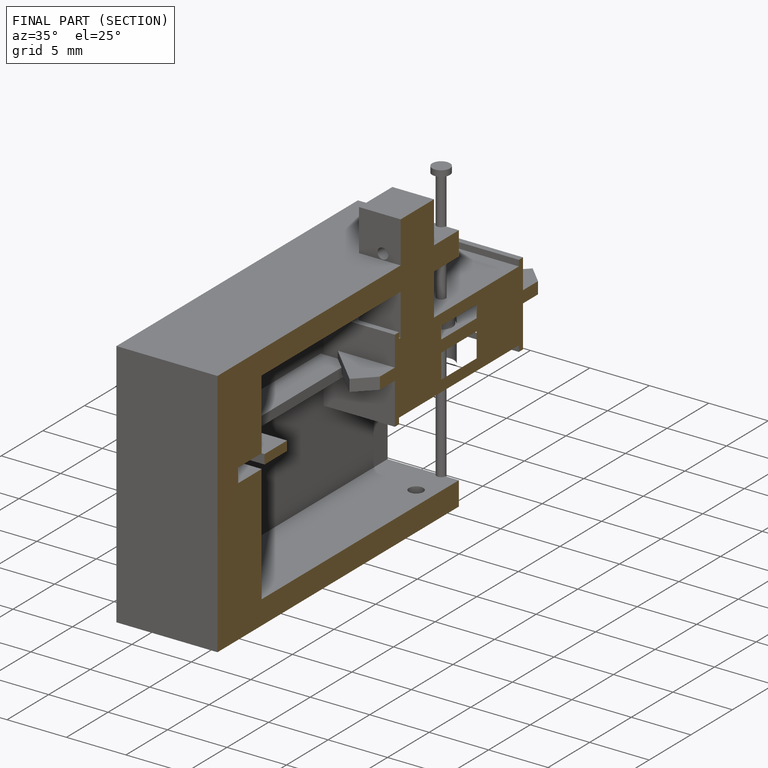
[diagram: finished part — half-section view (interior)]
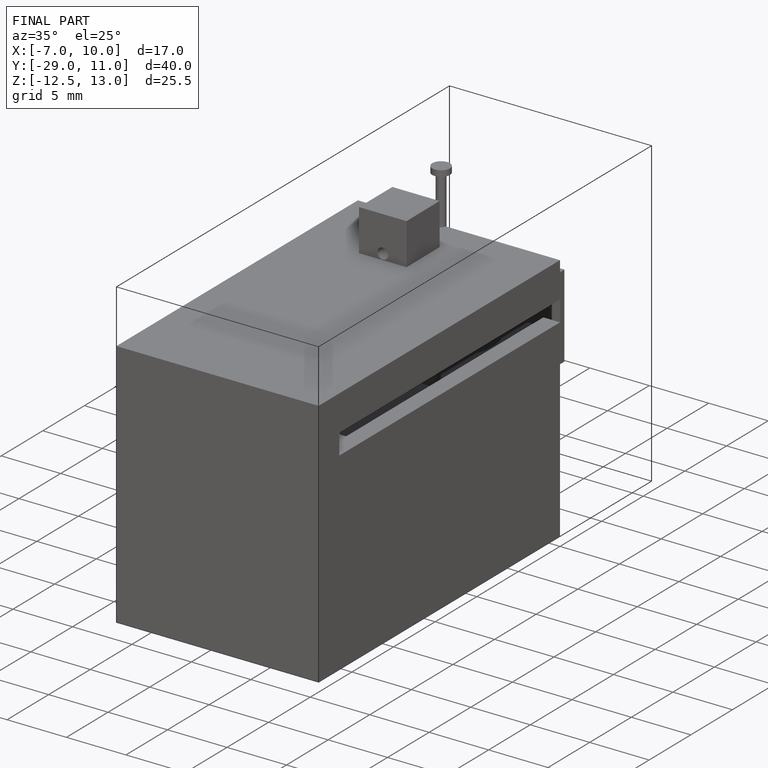
[diagram: finished part — iso view with bounding-box wireframe]
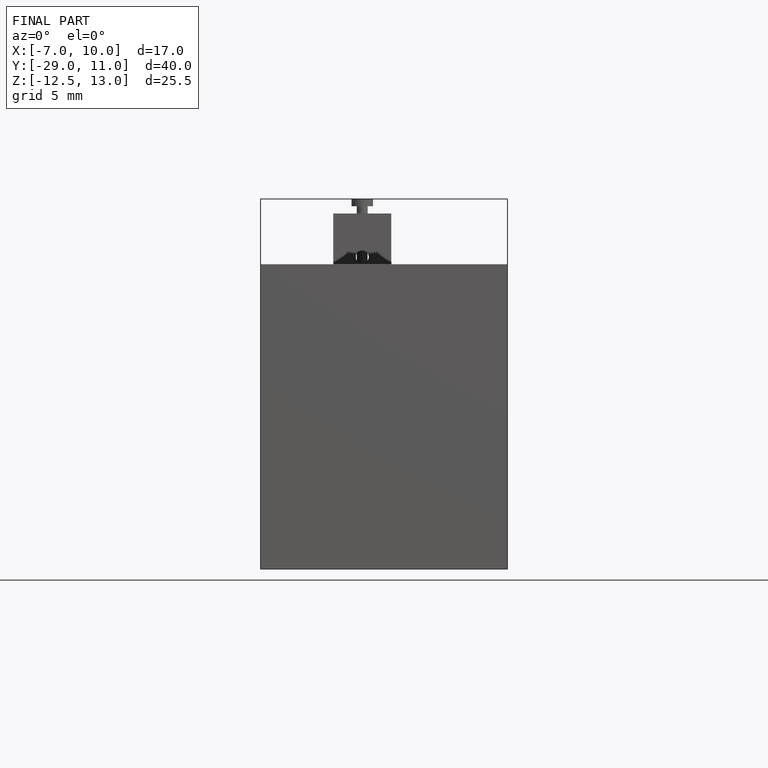
[diagram: finished part — front view with bounding-box wireframe]
